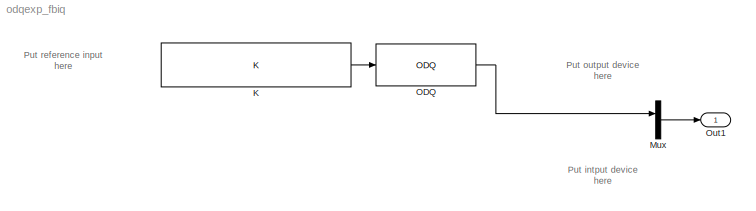
MODEL odqexp_fbiq
KIND model
BLOCK [Reference] K  REF=odqblock/K  (lib defined in mdl_3284093aac4b)
  A = 0
  B1 = 0
  B2 = 0
  C = 0
  D1 = 0
  D2 = 0
  FunctionWithSeparateData = off
  GeneratePreprocessorConditionals = off
  Ports = [2, 1]
  RTWMemSecDataConstants = Inherit from model
  RTWMemSecDataInternal = Inherit from model
  RTWMemSecDataParameters = Inherit from model
  RTWMemSecFuncExecute = Inherit from model
  RTWMemSecFuncInitTerm = Inherit from model
  SID = 4
  ShowPortLabels = FromPortIcon
  SourceBlock = odqblock/K
  SourceType = Controller K
  SystemSampleTime = -1
  Ts = Ts
  x0 = x0
BLOCK [Mux] Mux
  DisplayOption = bar
  Inputs = 2
  Ports = [2, 1]
  SID = 6
BLOCK [Reference] ODQ  REF=odqblock/ODQ  (lib defined in mdl_3284093aac4b)
  A = 0
  B1 = 0
  B2 = 0
  C = 0
  FunctionWithSeparateData = off
  GeneratePreprocessorConditionals = off
  Ports = [1, 1]
  RTWMemSecDataConstants = Inherit from model
  RTWMemSecDataInternal = Inherit from model
  RTWMemSecDataParameters = Inherit from model
  RTWMemSecFuncExecute = Inherit from model
  RTWMemSecFuncInitTerm = Inherit from model
  SID = 2
  ShowPortLabels = FromPortIcon
  SourceBlock = odqblock/ODQ
  SourceType = Opitimal Dynamic Quantizer
  SystemSampleTime = -1
  Ts = Ts
  d = d
BLOCK [Outport] Out1
  IconDisplay = Port number
  SID = 7
ANNOTATION (root): Put intput device\nhere
ANNOTATION (root): Put output device\nhere
ANNOTATION (root): Put reference input\nhere
LINE K:1 -> ODQ:1
LINE Mux:1 -> Out1:1
LINE ODQ:1 -> Mux:1
